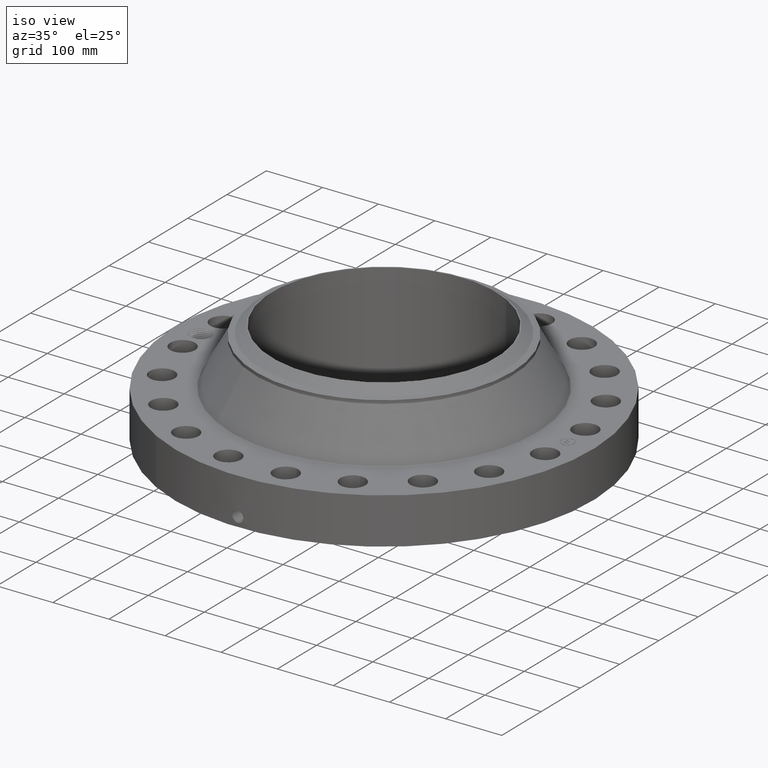
[diagram: clean part render]
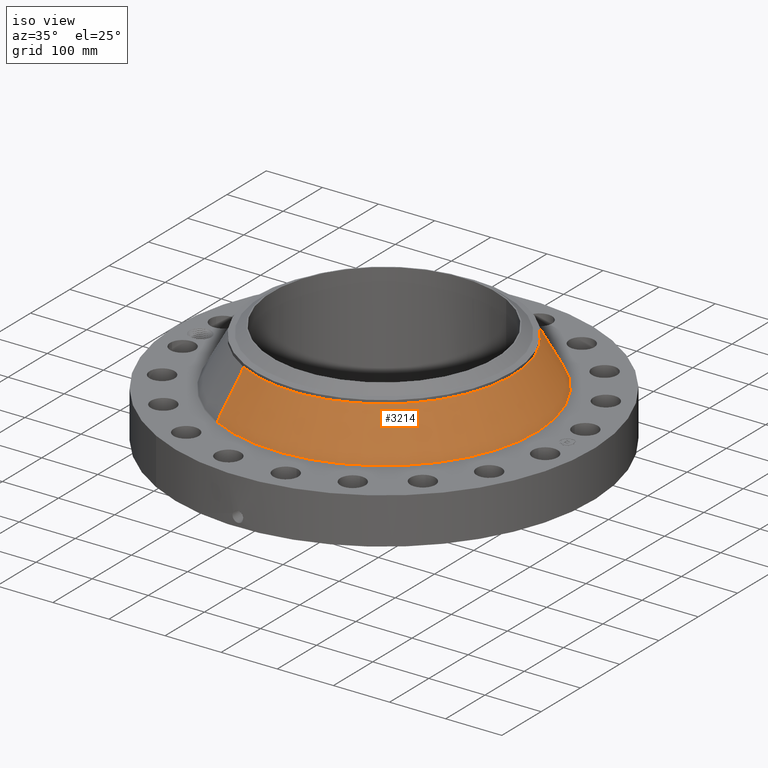
[diagram: same view with one face highlighted and labeled with its STEP entity id]
A machine part, iso view. The second image highlights one B-rep face of the part: STEP entity #3214.
In plain terms, the highlighted conical surface has half-angle 28.838 deg.
Its self-contained STEP definition (entity closure, byte-faithful):
#2573=AXIS2_PLACEMENT_3D('Circle Axis2P3D',#2571,#2572,$) ;
#3187=AXIS2_PLACEMENT_3D('Cone Axis2P3D',#3184,#3185,#3186) ;
#3198=AXIS2_PLACEMENT_3D('Circle Axis2P3D',#3196,#3197,$) ;
#2568=CARTESIAN_POINT('Vertex',(5.13742615947,9.40399550611,3.56212031925)) ;
#2571=CARTESIAN_POINT('Axis2P3D Location',(0.,0.,3.56212031925)) ;
#2575=CARTESIAN_POINT('Vertex',(-5.13742615947,-9.40399550611,3.56212031925)) ;
#3184=CARTESIAN_POINT('Axis2P3D Location',(0.,0.,6.67827836615)) ;
#3189=CARTESIAN_POINT('Line Origine',(4.72612800346,8.65111928158,5.1201993427)) ;
#3193=CARTESIAN_POINT('Vertex',(4.31482984746,7.89824305704,6.67827836615)) ;
#3196=CARTESIAN_POINT('Axis2P3D Location',(0.,0.,6.67827836615)) ;
#3200=CARTESIAN_POINT('Vertex',(-4.31482984746,-7.89824305704,6.67827836615)) ;
#3203=CARTESIAN_POINT('Line Origine',(-4.72612800346,-8.65111928158,5.1201993427)) ;
#2572=DIRECTION('Axis2P3D Direction',(0.,0.,-0.0393700787402)) ;
#3185=DIRECTION('Axis2P3D Direction',(0.,0.,-0.0393700787402)) ;
#3186=DIRECTION('Axis2P3D XDirection',(-0.0188750212049,-0.0345504945626,0.)) ;
#3190=DIRECTION('Vector Direction',(0.00910400168066,0.0166647632949,-0.034487764754)) ;
#3197=DIRECTION('Axis2P3D Direction',(0.,0.,-0.0393700787402)) ;
#3204=DIRECTION('Vector Direction',(-0.00910400168066,-0.0166647632949,-0.034487764754)) ;
#3191=VECTOR('Line Direction',#3190,0.0393700787402) ;
#3205=VECTOR('Line Direction',#3204,0.0393700787402) ;
#3209=ORIENTED_EDGE('',*,*,#2577,.F.) ;
#3210=ORIENTED_EDGE('',*,*,#3195,.T.) ;
#3211=ORIENTED_EDGE('',*,*,#3202,.T.) ;
#3212=ORIENTED_EDGE('',*,*,#3207,.F.) ;
#3214=ADVANCED_FACE('PartBody',(#3213),#3188,.T.) ;
#2574=CIRCLE('generated circle',#2573,10.7157957718) ;
#3199=CIRCLE('generated circle',#3198,9.00000000004) ;
#3188=CONICAL_SURFACE('Cone',#3187,9.00000000004,0.503313387865) ;
#2577=EDGE_CURVE('',#2569,#2576,#2574,.T.) ;
#3195=EDGE_CURVE('',#2569,#3194,#3192,.F.) ;
#3202=EDGE_CURVE('',#3194,#3201,#3199,.T.) ;
#3207=EDGE_CURVE('',#2576,#3201,#3206,.F.) ;
#3208=EDGE_LOOP('',(#3209,#3210,#3211,#3212)) ;
#3213=FACE_OUTER_BOUND('',#3208,.T.) ;
#3192=LINE('Line',#3189,#3191) ;
#3206=LINE('Line',#3203,#3205) ;
#2569=VERTEX_POINT('',#2568) ;
#2576=VERTEX_POINT('',#2575) ;
#3194=VERTEX_POINT('',#3193) ;
#3201=VERTEX_POINT('',#3200) ;